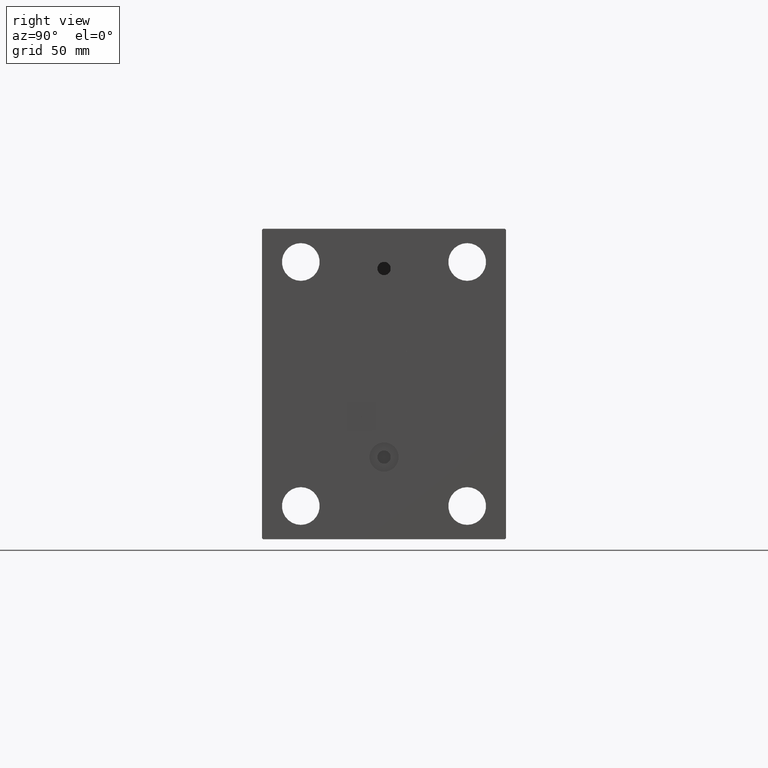
[diagram: clean part render]
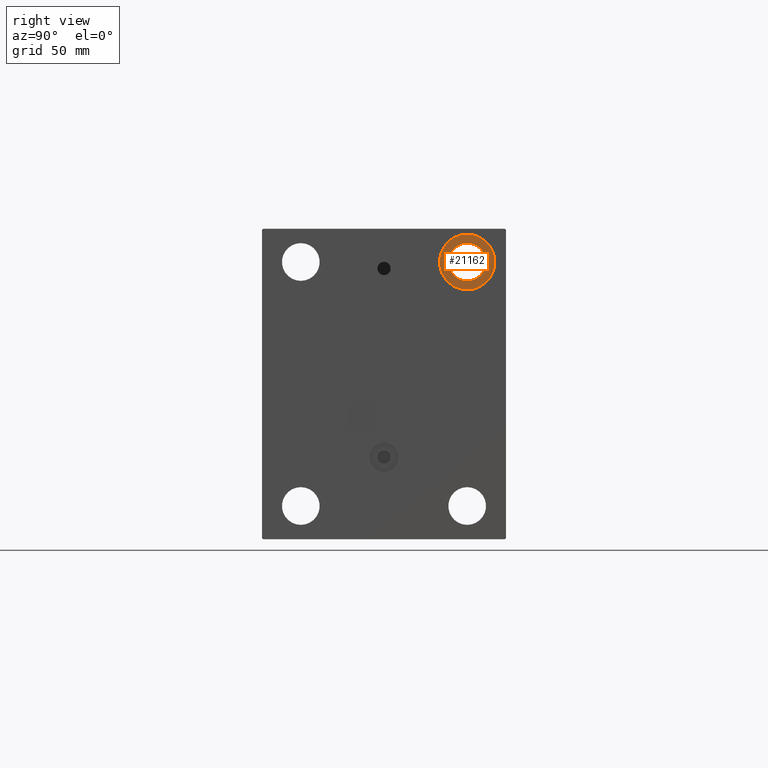
[diagram: same view with one face highlighted and labeled with its STEP entity id]
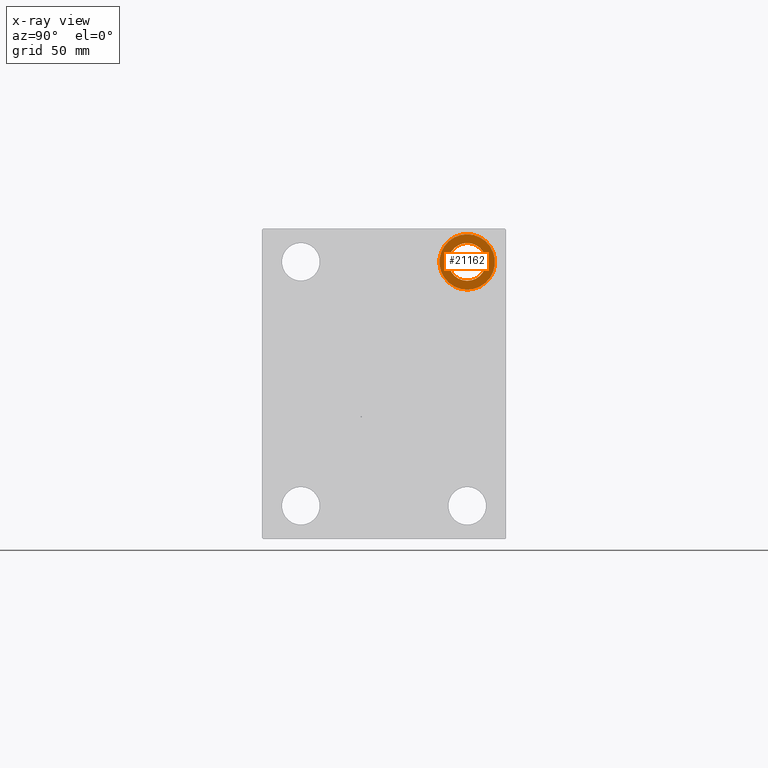
[diagram: x-ray of the same camera — body ghosted, the highlighted face saturated]
A machine part, right view. The second image highlights one B-rep face of the part: STEP entity #21162.
The next image is the same camera in x-ray: the body ghosted, the highlighted face saturated — about 0% of this face is hidden behind the body in this view.
In plain terms, the highlighted planar face has unit normal (1, 0, 0).
Its self-contained STEP definition (entity closure, byte-faithful):
#324 = DIRECTION ( 'NONE',  ( -1.000000000000000000, -0.000000000000000000, -0.000000000000000000 ) ) ;
#525 = DIRECTION ( 'NONE',  ( -1.000000000000000000, -0.000000000000000000, -0.000000000000000000 ) ) ;
#1231 = EDGE_LOOP ( 'NONE', ( #22587, #15184 ) ) ;
#1809 = DIRECTION ( 'NONE',  ( -1.000000000000000000, -0.000000000000000000, -0.000000000000000000 ) ) ;
#2149 = EDGE_CURVE ( 'NONE', #43837, #18465, #43197, .T. ) ;
#4201 = AXIS2_PLACEMENT_3D ( 'NONE', #33682, #23069, #26372 ) ;
#5130 = EDGE_CURVE ( 'NONE', #41316, #43847, #22750, .T. ) ;
#5460 = CARTESIAN_POINT ( 'NONE',  ( 136.0000000000000000, 37.50000000000000711, 42.50000000000000711 ) ) ;
#7606 = DIRECTION ( 'NONE',  ( 0.000000000000000000, 0.000000000000000000, -1.000000000000000000 ) ) ;
#8017 = PLANE ( 'NONE',  #41954 ) ;
#8650 = DIRECTION ( 'NONE',  ( 0.000000000000000000, 0.000000000000000000, -1.000000000000000000 ) ) ;
#9173 = EDGE_CURVE ( 'NONE', #18465, #43837, #37164, .T. ) ;
#13238 = CIRCLE ( 'NONE', #4201, 12.49999999999999645 ) ;
#15184 = ORIENTED_EDGE ( 'NONE', *, *, #2149, .T. ) ;
#15287 = EDGE_CURVE ( 'NONE', #43847, #41316, #13238, .T. ) ;
#15565 = FACE_BOUND ( 'NONE', #1231, .T. ) ;
#17566 = DIRECTION ( 'NONE',  ( 0.000000000000000000, 0.000000000000000000, 1.000000000000000000 ) ) ;
#18465 = VERTEX_POINT ( 'NONE', #44728 ) ;
#18641 = DIRECTION ( 'NONE',  ( 0.000000000000000000, 0.000000000000000000, 1.000000000000000000 ) ) ;
#21162 = ADVANCED_FACE ( 'NONE', ( #33507, #15565 ), #8017, .T. ) ;
#22587 = ORIENTED_EDGE ( 'NONE', *, *, #9173, .T. ) ;
#22750 = CIRCLE ( 'NONE', #44618, 12.49999999999999645 ) ;
#22955 = ORIENTED_EDGE ( 'NONE', *, *, #15287, .F. ) ;
#23069 = DIRECTION ( 'NONE',  ( -1.000000000000000000, -0.000000000000000000, -0.000000000000000000 ) ) ;
#26372 = DIRECTION ( 'NONE',  ( 0.000000000000000000, 0.000000000000000000, 1.000000000000000000 ) ) ;
#26601 = CARTESIAN_POINT ( 'NONE',  ( 136.0000000000000000, 37.50000000000000711, 55.00000000000000711 ) ) ;
#27370 = AXIS2_PLACEMENT_3D ( 'NONE', #43263, #525, #7606 ) ;
#29395 = CARTESIAN_POINT ( 'NONE',  ( 136.0000000000000000, 37.50000000000000711, 46.50000000000001421 ) ) ;
#31134 = AXIS2_PLACEMENT_3D ( 'NONE', #26601, #1809, #8650 ) ;
#32423 = CARTESIAN_POINT ( 'NONE',  ( 136.0000000000000000, 37.50000000000000711, 55.00000000000000711 ) ) ;
#32976 = ORIENTED_EDGE ( 'NONE', *, *, #5130, .F. ) ;
#33035 = CARTESIAN_POINT ( 'NONE',  ( 136.0000000000000000, 0.000000000000000000, 0.000000000000000000 ) ) ;
#33507 = FACE_OUTER_BOUND ( 'NONE', #43814, .T. ) ;
#33682 = CARTESIAN_POINT ( 'NONE',  ( 136.0000000000000000, 37.50000000000000711, 55.00000000000000711 ) ) ;
#37050 = DIRECTION ( 'NONE',  ( 1.000000000000000000, 0.000000000000000000, -0.000000000000000000 ) ) ;
#37164 = CIRCLE ( 'NONE', #27370, 8.499999999999992895 ) ;
#41316 = VERTEX_POINT ( 'NONE', #5460 ) ;
#41954 = AXIS2_PLACEMENT_3D ( 'NONE', #33035, #37050, #18641 ) ;
#43197 = CIRCLE ( 'NONE', #31134, 8.499999999999992895 ) ;
#43263 = CARTESIAN_POINT ( 'NONE',  ( 136.0000000000000000, 37.50000000000000711, 55.00000000000000711 ) ) ;
#43333 = CARTESIAN_POINT ( 'NONE',  ( 136.0000000000000000, 37.50000000000000711, 67.50000000000000000 ) ) ;
#43814 = EDGE_LOOP ( 'NONE', ( #32976, #22955 ) ) ;
#43837 = VERTEX_POINT ( 'NONE', #29395 ) ;
#43847 = VERTEX_POINT ( 'NONE', #43333 ) ;
#44618 = AXIS2_PLACEMENT_3D ( 'NONE', #32423, #324, #17566 ) ;
#44728 = CARTESIAN_POINT ( 'NONE',  ( 136.0000000000000000, 37.50000000000000711, 63.50000000000000000 ) ) ;